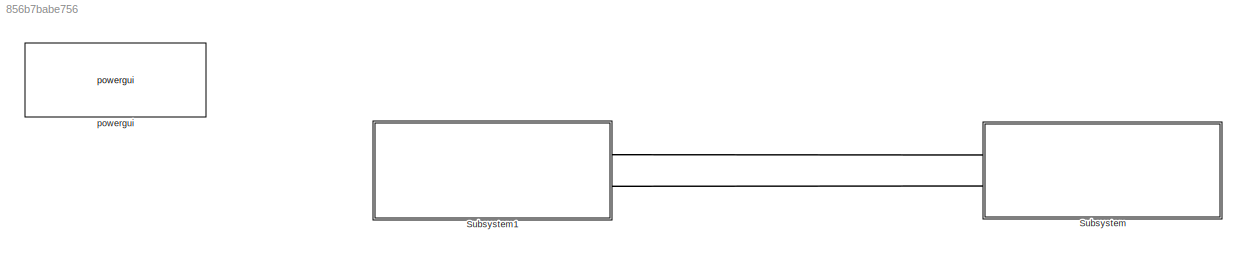
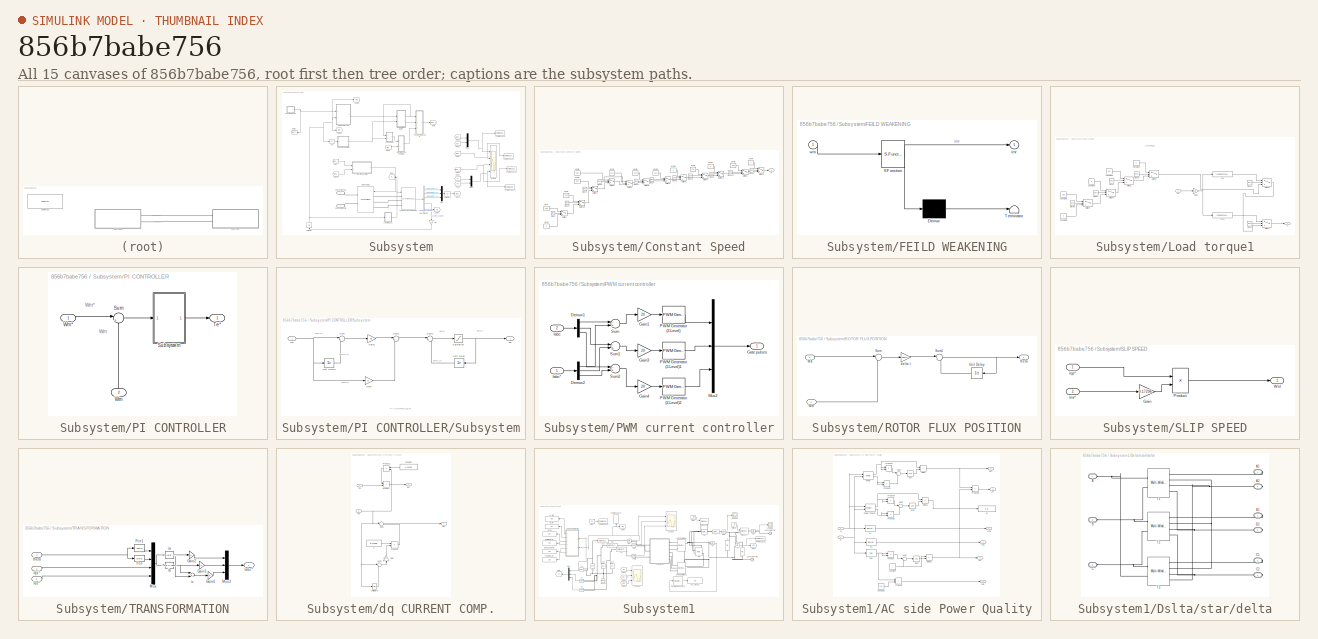
[diagram: thumbnail index - all 15 canvases of the model, root first then tree order]
MODEL slx_856b7babe756
KIND model
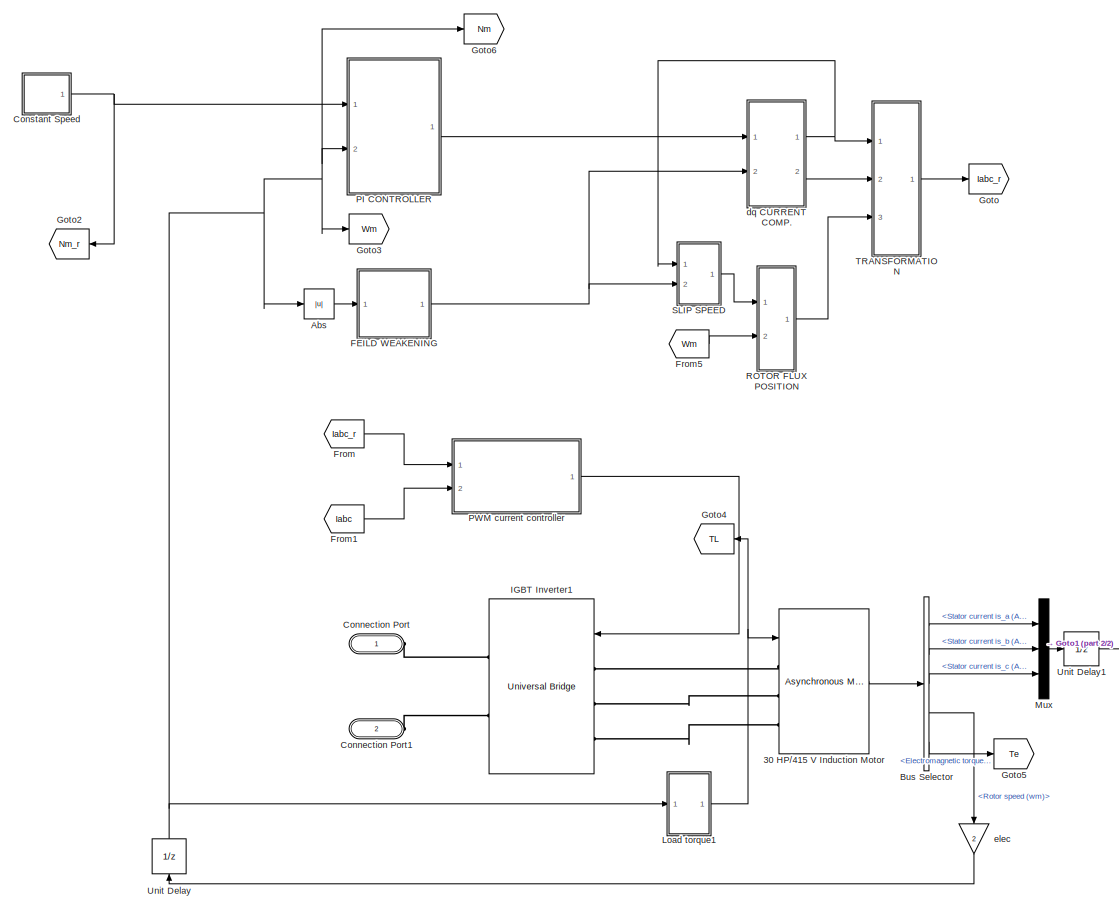
[diagram: Subsystem - part 1/2, center side, full height]
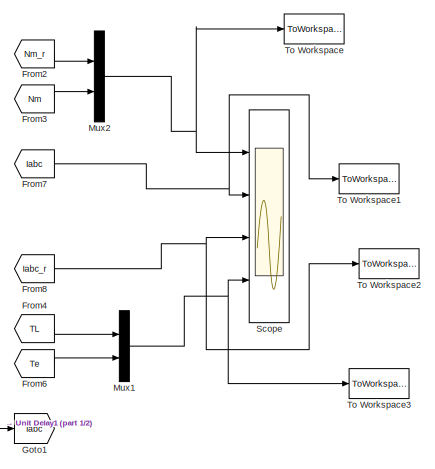
[diagram: Subsystem - part 2/2, middle right region]
BLOCK [SubSystem] Subsystem
  FunctionWithSeparateData = off
  MaskHideContents = off
  MinAlgLoopOccurrences = off
  Opaque = off
  Ports = [0, 0, 0, 0, 0, 2]
  PropExecContextOutsideSubsystem = off
  RTWSystemCode = Auto
  RequestExecContextInheritance = off
BLOCK [Reference] Subsystem/30 HP//415 V Induction Motor  REF=powerlib/Machines/Asynchronous Machine
SI Units
  AttributesFormatString = \n
  Cage1 = [ 0.022 0.226/377]
  Cage2 = [ 0.022 0.226/377]
  InitialConditions = [1 0 0 0 0 0 0 0]
  IterativeModel = Trapezoidal non iterative
  Lm = 0.0416
  LoadFlowParameters = 1492000
  Mechanical = [0.305 0 2 ]
  MechanicalLoad = Torque Tm
  NominalParameters = [30*746 415 50]
  Pmec = 0
  PolePairs = 2
  Ports = [1, 1, 0, 0, 0, 3]
  PresetModel = No
  ReferenceFrame = Rotor
  Rotor = [0.249 0.001397]
  RotorType = Squirrel-cage
  Saturation = [14.03593122, 27.81365428, 53.79336849, 72.68890987, 97.98006896, 148.6815601, 215.7428561, 302.9841135, 420.4778367 ; 230, 322, 414, 460, 506, 552, 598, 644, 690]
  ShowDetailedParameters = on
  SimulateSaturation = off
  SourceBlock = powerlib/Machines/Asynchronous Machine\nSI Units
  SourceType = Asynchronous Machine
  Stator = [0.251 0.001397]
  TsBlock = -1
  TsPowergui = 0
  Units = SI
BLOCK [Abs] Subsystem/Abs
BLOCK [BusSelector] Subsystem/Bus Selector
  OutputSignals = Stator measurements.Stator current is_a (A),Stator measurements.Stator current is_b (A),Stator measurements.Stator current is_c (A),Mechanical.Rotor speed (wm),Mechanical.Electromagnetic torque Te (N*m)
  Ports = [1, 5]
BLOCK [PMIOPort] Subsystem/Connection Port
  Port = 1
  Side = Left
BLOCK [PMIOPort] Subsystem/Connection Port1
  Port = 2
  Side = Left
BLOCK [SubSystem] Subsystem/Constant Speed
  FunctionWithSeparateData = off
  MaskHideContents = off
  MinAlgLoopOccurrences = off
  Opaque = off
  Ports = [0, 1]
  PropExecContextOutsideSubsystem = off
  RTWSystemCode = Auto
  RequestExecContextInheritance = off
BLOCK [Clock] Subsystem/Constant Speed/Clock
  Decimation = 2
BLOCK [Clock] Subsystem/Constant Speed/Clock1
  Decimation = 2
BLOCK [Clock] Subsystem/Constant Speed/Clock10
  Decimation = 2
BLOCK [Clock] Subsystem/Constant Speed/Clock2
  Decimation = 2
BLOCK [Clock] Subsystem/Constant Speed/Clock3
  Decimation = 2
BLOCK [Clock] Subsystem/Constant Speed/Clock4
  Decimation = 2
BLOCK [Clock] Subsystem/Constant Speed/Clock5
  Decimation = 2
BLOCK [Clock] Subsystem/Constant Speed/Clock6
  Decimation = 2
BLOCK [Clock] Subsystem/Constant Speed/Clock7
  Decimation = 2
BLOCK [Clock] Subsystem/Constant Speed/Clock8
  Decimation = 2
BLOCK [Clock] Subsystem/Constant Speed/Clock9
  Decimation = 2
BLOCK [Switch] Subsystem/Constant Speed/Switch
BLOCK [Switch] Subsystem/Constant Speed/Switch1
  Threshold = 7.5
BLOCK [Switch] Subsystem/Constant Speed/Switch10
  Threshold = 0.6
BLOCK [Switch] Subsystem/Constant Speed/Switch11
  Threshold = 6.8
BLOCK [Switch] Subsystem/Constant Speed/Switch2
  Threshold = 4.5
BLOCK [Switch] Subsystem/Constant Speed/Switch3
  Threshold = 8.3
BLOCK [Switch] Subsystem/Constant Speed/Switch4
  Threshold = 1.1
BLOCK [Switch] Subsystem/Constant Speed/Switch5
  Threshold = 1.8
BLOCK [Switch] Subsystem/Constant Speed/Switch6
  Threshold = 2.4
BLOCK [Switch] Subsystem/Constant Speed/Switch7
  Threshold = 6
BLOCK [Switch] Subsystem/Constant Speed/Switch8
  Threshold = 4
BLOCK [Switch] Subsystem/Constant Speed/Switch9
  Threshold = 5.3
BLOCK [Outport] Subsystem/Constant Speed/w*
  IconDisplay = Port number
BLOCK [Constant] Subsystem/Constant Speed/wref 
  Value = 250
BLOCK [Constant] Subsystem/Constant Speed/wref 1
  Value = 0
BLOCK [Constant] Subsystem/Constant Speed/wref 10
  Value = 250
BLOCK [Constant] Subsystem/Constant Speed/wref 11
  Value = 0
BLOCK [Constant] Subsystem/Constant Speed/wref 12
  Value = 0
BLOCK [Constant] Subsystem/Constant Speed/wref 2
  Value = 250
BLOCK [Constant] Subsystem/Constant Speed/wref 3
  Value = 250
BLOCK [Constant] Subsystem/Constant Speed/wref 4
  Value = 250
BLOCK [Constant] Subsystem/Constant Speed/wref 5
  Value = 250
BLOCK [Constant] Subsystem/Constant Speed/wref 6
  Value = 250
BLOCK [Constant] Subsystem/Constant Speed/wref 7
  Value = 0
BLOCK [Constant] Subsystem/Constant Speed/wref 8
  Value = 250
BLOCK [Constant] Subsystem/Constant Speed/wref 9
  Value = 250
BLOCK [SubSystem] Subsystem/FEILD WEAKENING
  ErrorFcn = Stateflow.Translate.translate
  FunctionWithSeparateData = off
  MaskHideContents = off
  MinAlgLoopOccurrences = off
  Opaque = off
  PermitHierarchicalResolution = ExplicitOnly
  Ports = [1, 1]
  PropExecContextOutsideSubsystem = off
  RTWSystemCode = Auto
  RequestExecContextInheritance = off
  SFBlockType = MATLAB Function
  TreatAsAtomicUnit = on
BLOCK [Demux] Subsystem/FEILD WEAKENING/ Demux 
  Outputs = 1
  Ports = [1, 1]
BLOCK [S-Function] Subsystem/FEILD WEAKENING/ SFunction 
  EnableBusSupport = on
  FunctionName = sf_sfun
  PortCounts = [1 2]
  Ports = [1, 2]
  Tag = Stateflow S-Function A 1
BLOCK [Terminator] Subsystem/FEILD WEAKENING/ Terminator 
BLOCK [Outport] Subsystem/FEILD WEAKENING/imr
  IconDisplay = Port number
BLOCK [Inport] Subsystem/FEILD WEAKENING/wm
  IconDisplay = Port number
BLOCK [From] Subsystem/From
  GotoTag = Iabc_r
BLOCK [From] Subsystem/From1
  GotoTag = Iabc
BLOCK [From] Subsystem/From2
  GotoTag = Nm_r
BLOCK [From] Subsystem/From3
  GotoTag = Nm
BLOCK [From] Subsystem/From4
  GotoTag = TL
BLOCK [From] Subsystem/From5
  GotoTag = Wm
BLOCK [From] Subsystem/From6
  GotoTag = Te
BLOCK [From] Subsystem/From7
  GotoTag = Iabc
BLOCK [From] Subsystem/From8
  GotoTag = Iabc_r
BLOCK [Goto] Subsystem/Goto
  GotoTag = Iabc_r
BLOCK [Goto] Subsystem/Goto1
  GotoTag = Iabc
BLOCK [Goto] Subsystem/Goto2
  GotoTag = Nm_r
BLOCK [Goto] Subsystem/Goto3
  GotoTag = Wm
BLOCK [Goto] Subsystem/Goto4
  GotoTag = TL
BLOCK [Goto] Subsystem/Goto5
  GotoTag = Te
BLOCK [Goto] Subsystem/Goto6
  GotoTag = Nm
BLOCK [Reference] Subsystem/IGBT Inverter1  REF=powerlib/Power
Electronics/Universal Bridge
  Arms = 3
  Device = MOSFET / Diodes
  ForwardVoltage = 0
  ForwardVoltages = [  0  0  ]
  GTOparameters = [ 10e-6 , 20e-6 ]
  IGBTparameters = [ 1e-6 , 2e-6 ]
  Lon = 0
  Measurements = None
  Measurements_2 = None
  Ports = [1, 0, 0, 0, 0, 3, 2]
  Ron = 1e-3
  SnubberCapacitance = inf
  SnubberResistance = 1e5
  SourceBlock = powerlib/Power\nElectronics/Universal Bridge
  SourceType = Universal Bridge
  converterType = Rectifier
BLOCK [SubSystem] Subsystem/Load torque1
  FunctionWithSeparateData = off
  MaskHideContents = off
  MinAlgLoopOccurrences = off
  Opaque = off
  Ports = [1, 1]
  PropExecContextOutsideSubsystem = off
  RTWSystemCode = Auto
  RequestExecContextInheritance = off
BLOCK [Clock] Subsystem/Load torque1/Clock1
BLOCK [Clock] Subsystem/Load torque1/Clock2
BLOCK [Clock] Subsystem/Load torque1/Clock3
BLOCK [Clock] Subsystem/Load torque1/Clock4
BLOCK [Clock] Subsystem/Load torque1/Clock5
BLOCK [Clock] Subsystem/Load torque1/Clock6
BLOCK [Constant] Subsystem/Load torque1/Constant3
  Value = 150
BLOCK [Constant] Subsystem/Load torque1/Constant4
  Value = 0
BLOCK [Constant] Subsystem/Load torque1/Constant5
  Value = 0
BLOCK [Constant] Subsystem/Load torque1/Constant6
  Value = 150
BLOCK [Constant] Subsystem/Load torque1/Constant7
  Value = 0
BLOCK [Fcn] Subsystem/Load torque1/Fcn
  Expr = (150/157.0796)*u(1)
BLOCK [Fcn] Subsystem/Load torque1/Fcn1
  Expr = (150/2.4674e+04)*((u(1))^2)
BLOCK [Gain] Subsystem/Load torque1/Gain1
  Gain = 1/2
  OutDataTypeStr = Inherit: Inherit via internal rule
  ParamDataTypeStr = Inherit: Inherit via internal rule
  SaturateOnIntegerOverflow = off
BLOCK [Switch] Subsystem/Load torque1/Switch1
  InputSameDT = off
  SaturateOnIntegerOverflow = off
  Threshold = 7.5
BLOCK [Switch] Subsystem/Load torque1/Switch2
  InputSameDT = off
  SaturateOnIntegerOverflow = off
  Threshold = 5
BLOCK [Switch] Subsystem/Load torque1/Switch3
  InputSameDT = off
  SaturateOnIntegerOverflow = off
  Threshold = 5.3
BLOCK [Switch] Subsystem/Load torque1/Switch4
  InputSameDT = off
  SaturateOnIntegerOverflow = off
  Threshold = 0.45
BLOCK [Switch] Subsystem/Load torque1/Switch5
  InputSameDT = off
  SaturateOnIntegerOverflow = off
  Threshold = 0.75
BLOCK [Switch] Subsystem/Load torque1/Switch6
  InputSameDT = off
  SaturateOnIntegerOverflow = off
  Threshold = 6
BLOCK [Outport] Subsystem/Load torque1/TL
  IconDisplay = Port number
BLOCK [Inport] Subsystem/Load torque1/Wr
  IconDisplay = Port number
BLOCK [Mux] Subsystem/Mux
  DisplayOption = bar
  Inputs = 3
  Ports = [3, 1]
BLOCK [Mux] Subsystem/Mux1
  DisplayOption = bar
  Inputs = 2
  Ports = [2, 1]
BLOCK [Mux] Subsystem/Mux2
  DisplayOption = bar
  Inputs = 2
  Ports = [2, 1]
BLOCK [SubSystem] Subsystem/PI CONTROLLER
  FunctionWithSeparateData = off
  MaskHideContents = off
  MinAlgLoopOccurrences = off
  Opaque = off
  Ports = [2, 1]
  PropExecContextOutsideSubsystem = off
  RTWSystemCode = Auto
  RequestExecContextInheritance = off
BLOCK [SubSystem] Subsystem/PI CONTROLLER/Subsystem
  FunctionWithSeparateData = off
  MaskHideContents = off
  MinAlgLoopOccurrences = off
  Opaque = off
  Ports = [1, 1]
  PropExecContextOutsideSubsystem = off
  RTWSystemCode = Auto
  RequestExecContextInheritance = off
BLOCK [Gain] Subsystem/PI CONTROLLER/Subsystem/Gain
  Gain = Ki
  OutDataTypeStr = Inherit: Inherit via internal rule
  ParamDataTypeStr = Inherit: Inherit via internal rule
  SaturateOnIntegerOverflow = off
BLOCK [Gain] Subsystem/PI CONTROLLER/Subsystem/Gain1
  Gain = Kp
  OutDataTypeStr = Inherit: Inherit via internal rule
  ParamDataTypeStr = Inherit: Inherit via internal rule
  SaturateOnIntegerOverflow = off
BLOCK [Saturate] Subsystem/PI CONTROLLER/Subsystem/Saturation
  InputPortMap = u0
  LowerLimit = -Lim
  Ports = [1, 1]
  UpperLimit = Lim
BLOCK [Sum] Subsystem/PI CONTROLLER/Subsystem/Sum
  IconShape = round
  InputSameDT = off
  Inputs = |+-
  OutDataTypeStr = Inherit: Inherit via internal rule
  Ports = [2, 1]
  SaturateOnIntegerOverflow = off
BLOCK [Sum] Subsystem/PI CONTROLLER/Subsystem/Sum1
  IconShape = round
  InputSameDT = off
  Inputs = |++
  OutDataTypeStr = Inherit: Inherit via internal rule
  Ports = [2, 1]
  SaturateOnIntegerOverflow = off
BLOCK [Sum] Subsystem/PI CONTROLLER/Subsystem/Sum2
  IconShape = round
  InputSameDT = off
  Inputs = |++
  OutDataTypeStr = Inherit: Inherit via internal rule
  Ports = [2, 1]
  SaturateOnIntegerOverflow = off
BLOCK [Outport] Subsystem/PI CONTROLLER/Subsystem/Te*
  IconDisplay = Port number
BLOCK [UnitDelay] Subsystem/PI CONTROLLER/Subsystem/Unit Delay
  SampleTime = Ts
BLOCK [UnitDelay] Subsystem/PI CONTROLLER/Subsystem/Unit Delay1
  SampleTime = Ts
BLOCK [Inport] Subsystem/PI CONTROLLER/Subsystem/We
  IconDisplay = Port number
BLOCK [Sum] Subsystem/PI CONTROLLER/Sum
  IconShape = round
  InputSameDT = off
  Inputs = |+-
  OutDataTypeStr = Inherit: Inherit via internal rule
  Ports = [2, 1]
  SaturateOnIntegerOverflow = off
BLOCK [Outport] Subsystem/PI CONTROLLER/Te*
  IconDisplay = Port number
BLOCK [Inport] Subsystem/PI CONTROLLER/Wm
  IconDisplay = Port number
  Port = 2
BLOCK [Inport] Subsystem/PI CONTROLLER/Wm*
  IconDisplay = Port number
BLOCK [SubSystem] Subsystem/PWM current controller
  FunctionWithSeparateData = off
  MaskHideContents = off
  MinAlgLoopOccurrences = off
  Opaque = off
  Ports = [2, 1]
  PropExecContextOutsideSubsystem = off
  RTWSystemCode = Auto
  RequestExecContextInheritance = off
BLOCK [Demux] Subsystem/PWM current controller/Demux1
  Outputs = 3
  Ports = [1, 3]
BLOCK [Demux] Subsystem/PWM current controller/Demux2
  Outputs = 3
  Ports = [1, 3]
BLOCK [Gain] Subsystem/PWM current controller/Gain1
  Gain = 20
BLOCK [Gain] Subsystem/PWM current controller/Gain3
  Gain = 20
BLOCK [Gain] Subsystem/PWM current controller/Gain4
  Gain = 20
BLOCK [Outport] Subsystem/PWM current controller/Gate pulses
  IconDisplay = Port number
BLOCK [Inport] Subsystem/PWM current controller/Iabc
  IconDisplay = Port number
  Port = 2
BLOCK [Inport] Subsystem/PWM current controller/Iabc*
  IconDisplay = Port number
BLOCK [Mux] Subsystem/PWM current controller/Mux2
  DisplayOption = bar
  Inputs = 3
  Ports = [3, 1]
BLOCK [Reference] Subsystem/PWM current controller/PWM Generator (2-Level)  REF=powerlib_meascontrol/Pulse & Signal
Generators/PWM Generator
(2-Level)
  Fc = 10000
  Freq = 60
  ModulatingSignals = off
  ModulatorMode = Unsynchronized
  ModulatorType = Single-phase half-bridge (2 pulses)
  Phase = 0
  Ports = [1, 1]
  SourceBlock = powerlib_meascontrol/Pulse & Signal\nGenerators/PWM Generator\n(2-Level)
  SourceType = PWM Generator (2-Level)
  Ts = 10e-6
  m = 0.8
  nF = 27
BLOCK [Reference] Subsystem/PWM current controller/PWM Generator (2-Level)1  REF=powerlib_meascontrol/Pulse & Signal
Generators/PWM Generator
(2-Level)
  Fc = 10000
  Freq = 60
  ModulatingSignals = off
  ModulatorMode = Unsynchronized
  ModulatorType = Single-phase half-bridge (2 pulses)
  Phase = 0
  Ports = [1, 1]
  SourceBlock = powerlib_meascontrol/Pulse & Signal\nGenerators/PWM Generator\n(2-Level)
  SourceType = PWM Generator (2-Level)
  Ts = 5e-6
  m = 0.8
  nF = 27
BLOCK [Reference] Subsystem/PWM current controller/PWM Generator (2-Level)2  REF=powerlib_meascontrol/Pulse & Signal
Generators/PWM Generator
(2-Level)
  Fc = 10000
  Freq = 60
  ModulatingSignals = off
  ModulatorMode = Unsynchronized
  ModulatorType = Single-phase half-bridge (2 pulses)
  Phase = 0
  Ports = [1, 1]
  SourceBlock = powerlib_meascontrol/Pulse & Signal\nGenerators/PWM Generator\n(2-Level)
  SourceType = PWM Generator (2-Level)
  Ts = 5e-6
  m = 0.8
  nF = 27
BLOCK [Sum] Subsystem/PWM current controller/Sum
  Inputs = -+
  Ports = [2, 1]
BLOCK [Sum] Subsystem/PWM current controller/Sum1
  Inputs = -+
  Ports = [2, 1]
BLOCK [Sum] Subsystem/PWM current controller/Sum2
  Inputs = -+
  Ports = [2, 1]
BLOCK [SubSystem] Subsystem/ROTOR FLUX POSITION
  FunctionWithSeparateData = off
  MaskHideContents = off
  MinAlgLoopOccurrences = off
  Opaque = off
  Ports = [2, 1]
  PropExecContextOutsideSubsystem = off
  RTWSystemCode = Auto
  RequestExecContextInheritance = off
BLOCK [Sum] Subsystem/ROTOR FLUX POSITION/Sum
  IconShape = round
  InputSameDT = off
  Inputs = |++
  OutDataTypeStr = Inherit: Inherit via internal rule
  Ports = [2, 1]
  SaturateOnIntegerOverflow = off
BLOCK [Sum] Subsystem/ROTOR FLUX POSITION/Sum1
  IconShape = round
  InputSameDT = off
  Inputs = |++
  OutDataTypeStr = Inherit: Inherit via internal rule
  Ports = [2, 1]
  SaturateOnIntegerOverflow = off
BLOCK [UnitDelay] Subsystem/ROTOR FLUX POSITION/Unit Delay
  SampleTime = 100e-6
BLOCK [Inport] Subsystem/ROTOR FLUX POSITION/Wm
  IconDisplay = Port number
  Port = 2
BLOCK [Inport] Subsystem/ROTOR FLUX POSITION/Wsl	
  IconDisplay = Port number
BLOCK [Gain] Subsystem/ROTOR FLUX POSITION/delta t
  Gain = 100e-6
  OutDataTypeStr = Inherit: Inherit via internal rule
  ParamDataTypeStr = Inherit: Inherit via internal rule
  SaturateOnIntegerOverflow = off
BLOCK [Outport] Subsystem/ROTOR FLUX POSITION/theta
  IconDisplay = Port number
BLOCK [SubSystem] Subsystem/SLIP SPEED
  FunctionWithSeparateData = off
  MaskHideContents = off
  MinAlgLoopOccurrences = off
  Opaque = off
  Ports = [2, 1]
  PropExecContextOutsideSubsystem = off
  RTWSystemCode = Auto
  RequestExecContextInheritance = off
BLOCK [Gain] Subsystem/SLIP SPEED/Gain
  Gain = 0.17296
  OutDataTypeStr = Inherit: Inherit via internal rule
  ParamDataTypeStr = Inherit: Inherit via internal rule
  SaturateOnIntegerOverflow = off
BLOCK [Inport] Subsystem/SLIP SPEED/Imr*
  IconDisplay = Port number
  Port = 2
BLOCK [Inport] Subsystem/SLIP SPEED/Iqs*
  IconDisplay = Port number
BLOCK [Product] Subsystem/SLIP SPEED/Product
  InputSameDT = off
  Inputs = */
  OutDataTypeStr = Inherit: Inherit via internal rule
  Ports = [2, 1]
  RndMeth = Floor
  SaturateOnIntegerOverflow = off
BLOCK [Outport] Subsystem/SLIP SPEED/Wsl
  IconDisplay = Port number
BLOCK [Scope] Subsystem/Scope
  DataFormat = StructureWithTime
  Decimation = 10
  Floating = off
  LimitDataPoints = off
  MaxDataPoints = 1000
  NumInputPorts = 4
  Ports = [4]
  SampleTime = 0
  SaveName = ScopeData1
  SaveToWorkspace = on
  ShowLegends = off
  TickLabels = on
  TimeRange = 4.5
  YMax = 250.008~25~22.5~7
  YMin = 249.989~-25~-22.5~-11
  ZoomMode = xonly
BLOCK [SubSystem] Subsystem/TRANSFORMATION
  FunctionWithSeparateData = off
  MaskHideContents = off
  MinAlgLoopOccurrences = off
  Opaque = off
  Ports = [3, 1]
  PropExecContextOutsideSubsystem = off
  RTWSystemCode = Auto
  RequestExecContextInheritance = off
BLOCK [Fcn] Subsystem/TRANSFORMATION/Fcn
  Expr = sin(u)
BLOCK [Fcn] Subsystem/TRANSFORMATION/Fcn1
  Expr = cos(u)
BLOCK [Gain] Subsystem/TRANSFORMATION/Gain2
BLOCK [Gain] Subsystem/TRANSFORMATION/Gain3
BLOCK [Gain] Subsystem/TRANSFORMATION/Gain4
BLOCK [Outport] Subsystem/TRANSFORMATION/Iabc*
  IconDisplay = Port number
BLOCK [Inport] Subsystem/TRANSFORMATION/Ids*
  IconDisplay = Port number
  Port = 2
BLOCK [Inport] Subsystem/TRANSFORMATION/Iqs*
  IconDisplay = Port number
BLOCK [Mux] Subsystem/TRANSFORMATION/Mux
  Ports = [4, 1]
BLOCK [Mux] Subsystem/TRANSFORMATION/Mux2
  Inputs = 3
  Ports = [3, 1]
BLOCK [Fcn] Subsystem/TRANSFORMATION/ia
  Expr = -u[3]*u[2] + u[4]*u[1]
BLOCK [Fcn] Subsystem/TRANSFORMATION/ib
  Expr = (-u[1]+1.7320508*u[2])*u[4]*0.5+(u[2]+1.7320508*u[1])*u[3]*0.5
BLOCK [Sum] Subsystem/TRANSFORMATION/ic
  Inputs = --
  Ports = [2, 1]
BLOCK [Inport] Subsystem/TRANSFORMATION/theta
  IconDisplay = Port number
  Port = 3
BLOCK [ToWorkspace] Subsystem/To Workspace
  MaxDataPoints = inf
  Ports = [1]
  SampleTime = 100e-6
  SaveFormat = Structure With Time
  VariableName = speed_vc1
BLOCK [ToWorkspace] Subsystem/To Workspace1
  MaxDataPoints = inf
  Ports = [1]
  SampleTime = 100e-6
  SaveFormat = Structure With Time
  VariableName = current_vc1
BLOCK [ToWorkspace] Subsystem/To Workspace2
  MaxDataPoints = inf
  Ports = [1]
  SampleTime = 100e-6
  SaveFormat = Structure With Time
  VariableName = current_ref_vc1
BLOCK [ToWorkspace] Subsystem/To Workspace3
  MaxDataPoints = inf
  Ports = [1]
  SampleTime = 100e-6
  SaveFormat = Structure With Time
  VariableName = torque_vc1
BLOCK [UnitDelay] Subsystem/Unit Delay
  SampleTime = 100e-6
BLOCK [UnitDelay] Subsystem/Unit Delay1
  SampleTime = 10e-6
BLOCK [SubSystem] Subsystem/dq CURRENT COMP.
  FunctionWithSeparateData = off
  MaskHideContents = off
  MinAlgLoopOccurrences = off
  Opaque = off
  Ports = [2, 2]
  PropExecContextOutsideSubsystem = off
  RTWSystemCode = Auto
  RequestExecContextInheritance = off
BLOCK [Constant] Subsystem/dq CURRENT COMP./Constant
  Value = 0.12115
BLOCK [Gain] Subsystem/dq CURRENT COMP./Gain
  Gain = 1/(10e-6)
  OutDataTypeStr = Inherit: Inherit via internal rule
  ParamDataTypeStr = Inherit: Inherit via internal rule
  SaturateOnIntegerOverflow = off
BLOCK [Outport] Subsystem/dq CURRENT COMP./Ids*
  IconDisplay = Port number
  Port = 2
BLOCK [Inport] Subsystem/dq CURRENT COMP./Imr
  IconDisplay = Port number
  Port = 2
BLOCK [Outport] Subsystem/dq CURRENT COMP./Iqs*
  IconDisplay = Port number
BLOCK [Product] Subsystem/dq CURRENT COMP./Product
  InputSameDT = off
  Inputs = /*
  OutDataTypeStr = Inherit: Inherit via internal rule
  Ports = [2, 1]
  RndMeth = Floor
  SaturateOnIntegerOverflow = off
BLOCK [Product] Subsystem/dq CURRENT COMP./Product1
  InputSameDT = off
  OutDataTypeStr = Inherit: Inherit via internal rule
  Ports = [2, 1]
  RndMeth = Floor
  SaturateOnIntegerOverflow = off
BLOCK [Product] Subsystem/dq CURRENT COMP./Product2
  Ports = [2, 1]
  RndMeth = Floor
BLOCK [Sum] Subsystem/dq CURRENT COMP./Sum1
  IconShape = round
  InputSameDT = off
  Inputs = |++
  OutDataTypeStr = Inherit: Inherit via internal rule
  Ports = [2, 1]
  SaturateOnIntegerOverflow = off
BLOCK [Sum] Subsystem/dq CURRENT COMP./Sum2
  IconShape = round
  InputSameDT = off
  Inputs = |+-
  OutDataTypeStr = Inherit: Inherit via internal rule
  Ports = [2, 1]
  SaturateOnIntegerOverflow = off
BLOCK [Inport] Subsystem/dq CURRENT COMP./Te*
  IconDisplay = Port number
BLOCK [UnitDelay] Subsystem/dq CURRENT COMP./Unit Delay3
  SampleTime = 10e-6
BLOCK [Constant] Subsystem/dq CURRENT COMP./tr
  Value = 0.17296
BLOCK [Gain] Subsystem/elec
  Gain = 2
  OutDataTypeStr = Inherit: Inherit via internal rule
  ParamDataTypeStr = Inherit: Inherit via internal rule
  SaturateOnIntegerOverflow = off
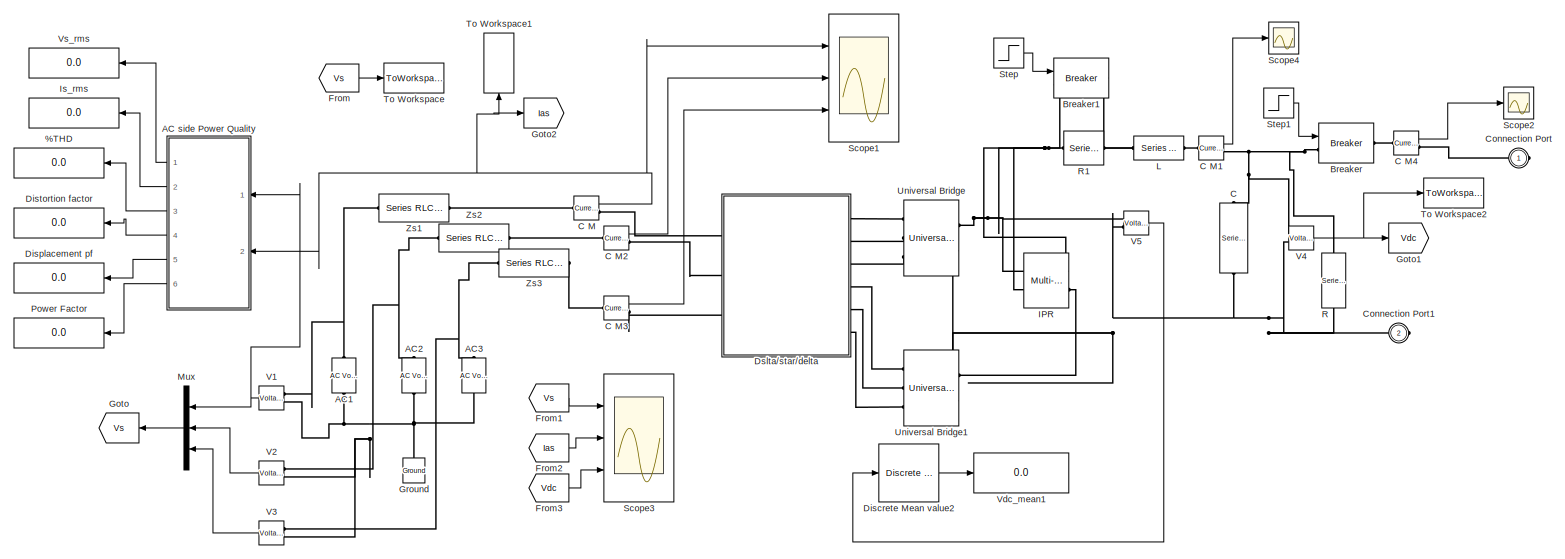
[diagram: Subsystem1 - part 1/1, most of the canvas]
BLOCK [SubSystem] Subsystem1
  FunctionWithSeparateData = off
  MaskHideContents = off
  MinAlgLoopOccurrences = off
  Opaque = off
  Ports = [0, 0, 0, 0, 0, 0, 2]
  PropExecContextOutsideSubsystem = off
  RTWSystemCode = Auto
  RequestExecContextInheritance = off
BLOCK [Display] Subsystem1/%THD
  Decimation = 1
  Ports = [1]
BLOCK [SubSystem] Subsystem1/AC side Power Quality
  FunctionWithSeparateData = off
  MaskHideContents = off
  MinAlgLoopOccurrences = off
  Opaque = off
  Ports = [2, 6]
  PropExecContextOutsideSubsystem = off
  RTWSystemCode = Auto
  RequestExecContextInheritance = off
BLOCK [Constant] Subsystem1/AC side Power Quality/Constant
BLOCK [Constant] Subsystem1/AC side Power Quality/Constant1
  Value = 100
BLOCK [Outport] Subsystem1/AC side Power Quality/DF
  IconDisplay = Port number
  Port = 4
BLOCK [Outport] Subsystem1/AC side Power Quality/DPF
  IconDisplay = Port number
  Port = 5
BLOCK [Product] Subsystem1/AC side Power Quality/Divide
  InputSameDT = off
  Inputs = */
  OutDataTypeStr = Inherit: Inherit via internal rule
  Ports = [2, 1]
  RndMeth = Floor
  SaturateOnIntegerOverflow = off
BLOCK [Product] Subsystem1/AC side Power Quality/Divide1
  InputSameDT = off
  Inputs = */
  OutDataTypeStr = Inherit: Inherit via internal rule
  Ports = [2, 1]
  RndMeth = Floor
  SaturateOnIntegerOverflow = off
BLOCK [Product] Subsystem1/AC side Power Quality/Divide2
  InputSameDT = off
  Inputs = */
  OutDataTypeStr = Inherit: Inherit via internal rule
  Ports = [2, 1]
  RndMeth = Floor
  SaturateOnIntegerOverflow = off
BLOCK [Outport] Subsystem1/AC side Power Quality/Irms
  IconDisplay = Port number
  Port = 2
BLOCK [Inport] Subsystem1/AC side Power Quality/Is
  IconDisplay = Port number
  Port = 2
BLOCK [Reference] Subsystem1/AC side Power Quality/Is1  REF=powerlib_extras/Discrete
Measurements/Discrete 
RMS value
  Freq = 50
  Mag_Init = 0
  Ports = [1, 1]
  SourceBlock = powerlib_extras/Discrete\nMeasurements/Discrete \nRMS value
  SourceType = Discrete RMS value
  Ts = 5e-006
BLOCK [Reference] Subsystem1/AC side Power Quality/Is3  REF=powerlib_extras/Discrete
Measurements/Discrete 
RMS value
  Freq = 50
  Mag_Init = 0
  Ports = [1, 1]
  SourceBlock = powerlib_extras/Discrete\nMeasurements/Discrete \nRMS value
  SourceType = Discrete RMS value
  Ts = 5e-006
BLOCK [Outport] Subsystem1/AC side Power Quality/PF
  IconDisplay = Port number
  Port = 6
BLOCK [Reference] Subsystem1/AC side Power Quality/Power  REF=powerlib_meascontrol/Measurements/Power
  Freq = 60
  Iinit = [1, 0]
  Ports = [2, 2]
  SourceBlock = powerlib_meascontrol/Measurements/Power
  SourceType = Power
  Ts = 0
  Vinit = [1, 0]
BLOCK [Reference] Subsystem1/AC side Power Quality/Power (Phasor)  REF=powerlib_meascontrol/Measurements/Power
(Phasor)
  Ports = [2, 2]
  SourceBlock = powerlib_meascontrol/Measurements/Power\n(Phasor)
  SourceType = Power (Phasor)
BLOCK [Product] Subsystem1/AC side Power Quality/Product
  InputSameDT = off
  OutDataTypeStr = Inherit: Inherit via internal rule
  Ports = [2, 1]
  RndMeth = Floor
  SaturateOnIntegerOverflow = off
BLOCK [Product] Subsystem1/AC side Power Quality/Product1
  InputSameDT = off
  OutDataTypeStr = Inherit: Inherit via internal rule
  Ports = [2, 1]
  RndMeth = Floor
  SaturateOnIntegerOverflow = off
BLOCK [Product] Subsystem1/AC side Power Quality/Product2
  InputSameDT = off
  OutDataTypeStr = Inherit: Inherit via internal rule
  Ports = [2, 1]
  RndMeth = Floor
  SaturateOnIntegerOverflow = off
BLOCK [Product] Subsystem1/AC side Power Quality/Product3
  InputSameDT = off
  OutDataTypeStr = Inherit: Inherit via internal rule
  Ports = [2, 1]
  RndMeth = Floor
  SaturateOnIntegerOverflow = off
BLOCK [Product] Subsystem1/AC side Power Quality/Product4
  InputSameDT = off
  OutDataTypeStr = Inherit: Inherit via internal rule
  Ports = [2, 1]
  RndMeth = Floor
  SaturateOnIntegerOverflow = off
BLOCK [Product] Subsystem1/AC side Power Quality/Product5
  InputSameDT = off
  OutDataTypeStr = Inherit: Inherit via internal rule
  Ports = [2, 1]
  RndMeth = Floor
  SaturateOnIntegerOverflow = off
BLOCK [Product] Subsystem1/AC side Power Quality/Product6
  InputSameDT = off
  OutDataTypeStr = Inherit: Inherit via internal rule
  Ports = [2, 1]
  RndMeth = Floor
  SaturateOnIntegerOverflow = off
BLOCK [Sqrt] Subsystem1/AC side Power Quality/Sqrt
BLOCK [Sqrt] Subsystem1/AC side Power Quality/Sqrt1
BLOCK [Sqrt] Subsystem1/AC side Power Quality/Sqrt2
BLOCK [Sum] Subsystem1/AC side Power Quality/Sum1
  IconShape = round
  InputSameDT = off
  Inputs = |++
  OutDataTypeStr = Inherit: Inherit via internal rule
  Ports = [2, 1]
  SaturateOnIntegerOverflow = off
BLOCK [Sum] Subsystem1/AC side Power Quality/Sum2
  IconShape = round
  InputSameDT = off
  Inputs = |++
  OutDataTypeStr = Inherit: Inherit via internal rule
  Ports = [2, 1]
  SaturateOnIntegerOverflow = off
BLOCK [Sum] Subsystem1/AC side Power Quality/Sum3
  IconShape = round
  InputSameDT = off
  Inputs = |++
  OutDataTypeStr = Inherit: Inherit via internal rule
  Ports = [2, 1]
  SaturateOnIntegerOverflow = off
BLOCK [Reference] Subsystem1/AC side Power Quality/THD  REF=powerlib_meascontrol/Measurements/THD
  Freq = 50
  Ports = [1, 1]
  SourceBlock = powerlib_meascontrol/Measurements/THD
  SourceType = THD
  Ts = 5e-006
BLOCK [Outport] Subsystem1/AC side Power Quality/THD 
  IconDisplay = Port number
  Port = 3
BLOCK [Outport] Subsystem1/AC side Power Quality/Vrms 
  IconDisplay = Port number
BLOCK [Inport] Subsystem1/AC side Power Quality/Vs
  IconDisplay = Port number
BLOCK [Display] Subsystem1/AC side Power Quality/pf
  Decimation = 1
  Format = long
  Ports = [1]
BLOCK [Reference] Subsystem1/AC1  REF=powerlib/Electrical
Sources/AC Voltage Source
  Amplitude = 338.41
  Frequency = 50
  Measurements = None
  Phase = 0
  Ports = [0, 0, 0, 0, 0, 1, 1]
  SampleTime = 0
  SourceBlock = powerlib/Electrical\nSources/AC Voltage Source
  SourceType = AC Voltage Source
BLOCK [Reference] Subsystem1/AC2  REF=powerlib/Electrical
Sources/AC Voltage Source
  Amplitude = 338.41
  Frequency = 50
  Measurements = None
  Phase = -120
  Ports = [0, 0, 0, 0, 0, 1, 1]
  SampleTime = 0
  SourceBlock = powerlib/Electrical\nSources/AC Voltage Source
  SourceType = AC Voltage Source
BLOCK [Reference] Subsystem1/AC3  REF=powerlib/Electrical
Sources/AC Voltage Source
  Amplitude = 338.41
  Frequency = 50
  Measurements = None
  Phase = -240
  Ports = [0, 0, 0, 0, 0, 1, 1]
  SampleTime = 0
  SourceBlock = powerlib/Electrical\nSources/AC Voltage Source
  SourceType = AC Voltage Source
BLOCK [Reference] Subsystem1/Breaker  REF=powerlib/Elements/Breaker
  BreakerResistance = 0.01
  External = on
  InitialState = 0
  Measurements = None
  MoreParameters = off
  NoBreakLoop = off
  Ports = [1, 0, 0, 0, 0, 1, 1]
  SnubberCapacitance = inf
  SnubberResistance = 1e6
  SourceBlock = powerlib/Elements/Breaker
  SourceType = Breaker
  SwitchingTimes = [ 1/60  5/60 ]
BLOCK [Reference] Subsystem1/Breaker1  REF=powerlib/Elements/Breaker
  BreakerResistance = 0.01
  External = on
  InitialState = 0
  Measurements = None
  MoreParameters = off
  NoBreakLoop = off
  Ports = [1, 0, 0, 0, 0, 1, 1]
  SnubberCapacitance = inf
  SnubberResistance = 1e6
  SourceBlock = powerlib/Elements/Breaker
  SourceType = Breaker
  SwitchingTimes = [ 1/60  5/60 ]
BLOCK [Reference] Subsystem1/C   REF=powerlib/Elements/Series RLC Branch
  BranchType = C
  Capacitance = 1500e-6
  Inductance = 1e-3
  InitialCurrent = 0
  InitialVoltage = 0
  LConnTagsString = __new0
  Measurements = Branch voltage
  Ports = [0, 0, 0, 0, 0, 1, 1]
  RConnTagsString = __new0
  Resistance = 1
  SetiL0 = off
  Setx0 = off
  SourceBlock = powerlib/Elements/Series RLC Branch
  SourceType = Series RLC Branch
BLOCK [Reference] Subsystem1/C M  REF=powerlib/Measurements/Current Measurement
  OutputType = Complex
  PSBequivalent = 0
  PhasorSimulation = off
  Ports = [0, 1, 0, 0, 0, 1, 1]
  SourceBlock = powerlib/Measurements/Current Measurement
  SourceType = Current Measurement
  UserDataPersistent = on
BLOCK [Reference] Subsystem1/C M1  REF=powerlib/Measurements/Current Measurement
  OutputType = Complex
  PSBequivalent = 0
  PhasorSimulation = off
  Ports = [0, 1, 0, 0, 0, 1, 1]
  SourceBlock = powerlib/Measurements/Current Measurement
  SourceType = Current Measurement
  UserDataPersistent = on
BLOCK [Reference] Subsystem1/C M2  REF=powerlib/Measurements/Current Measurement
  OutputType = Complex
  PSBequivalent = 0
  PhasorSimulation = off
  Ports = [0, 1, 0, 0, 0, 1, 1]
  SourceBlock = powerlib/Measurements/Current Measurement
  SourceType = Current Measurement
  UserDataPersistent = on
BLOCK [Reference] Subsystem1/C M3  REF=powerlib/Measurements/Current Measurement
  OutputType = Complex
  PSBequivalent = 0
  PhasorSimulation = off
  Ports = [0, 1, 0, 0, 0, 1, 1]
  SourceBlock = powerlib/Measurements/Current Measurement
  SourceType = Current Measurement
  UserDataPersistent = on
BLOCK [Reference] Subsystem1/C M4  REF=powerlib/Measurements/Current Measurement
  OutputType = Complex
  PSBequivalent = 0
  PhasorSimulation = off
  Ports = [0, 1, 0, 0, 0, 1, 1]
  SourceBlock = powerlib/Measurements/Current Measurement
  SourceType = Current Measurement
  UserDataPersistent = on
BLOCK [PMIOPort] Subsystem1/Connection Port
  Port = 1
  Side = Right
BLOCK [PMIOPort] Subsystem1/Connection Port1
  Port = 2
  Side = Right
BLOCK [Reference] Subsystem1/Discrete Mean value2  REF=powerlib_extras/Discrete
Measurements/Discrete 
Mean value
  Freq = 50
  Ports = [1, 1]
  SourceBlock = powerlib_extras/Discrete\nMeasurements/Discrete \nMean value
  SourceType = Discrete Mean value
  Ts = 5e-006
  Vinit = 0
BLOCK [Display] Subsystem1/Displacement pf
  Decimation = 1
  Ports = [1]
BLOCK [Display] Subsystem1/Distortion factor
  Decimation = 1
  Ports = [1]
BLOCK [SubSystem] Subsystem1/Dslta//star//delta
  FunctionWithSeparateData = off
  MaskHideContents = off
  MinAlgLoopOccurrences = off
  Opaque = off
  Ports = [0, 0, 0, 0, 0, 3, 6]
  PropExecContextOutsideSubsystem = off
  RTWSystemCode = Auto
  RequestExecContextInheritance = off
BLOCK [PMIOPort] Subsystem1/Dslta//star//delta/A
  Port = 7
  Side = Left
  Tag = PMCPort
BLOCK [PMIOPort] Subsystem1/Dslta//star//delta/A1
  Port = 1
  Side = Right
  Tag = PMCPort
BLOCK [PMIOPort] Subsystem1/Dslta//star//delta/A2
  Port = 4
  Side = Right
  Tag = PMCPort
BLOCK [PMIOPort] Subsystem1/Dslta//star//delta/B
  Port = 8
  Side = Left
  Tag = PMCPort
BLOCK [PMIOPort] Subsystem1/Dslta//star//delta/B1
  Port = 2
  Side = Right
  Tag = PMCPort
BLOCK [PMIOPort] Subsystem1/Dslta//star//delta/B2
  Port = 5
  Side = Right
  Tag = PMCPort
BLOCK [PMIOPort] Subsystem1/Dslta//star//delta/C
  Port = 9
  Side = Left
  Tag = PMCPort
BLOCK [PMIOPort] Subsystem1/Dslta//star//delta/C1
  Port = 3
  Side = Right
  Tag = PMCPort
BLOCK [PMIOPort] Subsystem1/Dslta//star//delta/C2
  Port = 6
  Side = Right
  Tag = PMCPort
BLOCK [Reference] Subsystem1/Dslta//star//delta/T1  REF=powerlib/Elements/Multi-Winding
Transformer
  BreakLoop = off
  DataFile = 'hysteresis.mat'
  DataType = off
  Hysteresis = off
  InitialFlux = 0
  LeftWindings = 1
  Lm = 50
  Measurements = None
  MoreParameters = off
  NominalPower = [8.53e3 50]
  NominalVoltages = [ 440  254.034 440 ]
  NumberOfTaps = 2
  Ports = [0, 0, 0, 0, 0, 2, 4]
  RightWindings = 2
  Rm = 50
  Saturation = [ 0,0 ; 0.0024,1.2 ; 1.0,1.52 ]
  SetSaturation = off
  SourceBlock = powerlib/Elements/Multi-Winding\nTransformer
  SourceType = Multi-Winding Transformer
  TappedWindings = no taps
  TransfoNumber = 1
  UNITS = pu
  WindingInductances = [ 0.02  0.02  0.02 ]
  WindingResistances = [ 0.005  0.005  0.005 ]
BLOCK [Reference] Subsystem1/Dslta//star//delta/T2  REF=powerlib/Elements/Multi-Winding
Transformer
  BreakLoop = off
  DataFile = 'hysteresis.mat'
  DataType = off
  Hysteresis = off
  InitialFlux = 0
  LeftWindings = 1
  Lm = 50
  Measurements = None
  MoreParameters = off
  NominalPower = [8.53e3 50]
  NominalVoltages = [ 440  254.034 440 ]
  NumberOfTaps = 2
  Ports = [0, 0, 0, 0, 0, 2, 4]
  RightWindings = 2
  Rm = 50
  Saturation = [ 0,0 ; 0.0024,1.2 ; 1.0,1.52 ]
  SetSaturation = off
  SourceBlock = powerlib/Elements/Multi-Winding\nTransformer
  SourceType = Multi-Winding Transformer
  TappedWindings = no taps
  TransfoNumber = 1
  UNITS = pu
  WindingInductances = [ 0.02  0.02  0.02 ]
  WindingResistances = [ 0.005  0.005  0.005 ]
BLOCK [Reference] Subsystem1/Dslta//star//delta/T3  REF=powerlib/Elements/Multi-Winding
Transformer
  BreakLoop = off
  DataFile = 'hysteresis.mat'
  DataType = off
  Hysteresis = off
  InitialFlux = 0
  LeftWindings = 1
  Lm = 50
  Measurements = None
  MoreParameters = off
  NominalPower = [8.53e3 50]
  NominalVoltages = [ 440  254.034 440 ]
  NumberOfTaps = 2
  Ports = [0, 0, 0, 0, 0, 2, 4]
  RightWindings = 2
  Rm = 50
  Saturation = [ 0,0 ; 0.0024,1.2 ; 1.0,1.52 ]
  SetSaturation = off
  SourceBlock = powerlib/Elements/Multi-Winding\nTransformer
  SourceType = Multi-Winding Transformer
  TappedWindings = no taps
  TransfoNumber = 1
  UNITS = pu
  WindingInductances = [ 0.02  0.02  0.02 ]
  WindingResistances = [ 0.005  0.005  0.005 ]
BLOCK [From] Subsystem1/From
  GotoTag = Vs
BLOCK [From] Subsystem1/From1
  GotoTag = Vs
BLOCK [From] Subsystem1/From2
  GotoTag = Ias
BLOCK [From] Subsystem1/From3
  GotoTag = Vdc
BLOCK [Goto] Subsystem1/Goto
  GotoTag = Vs
BLOCK [Goto] Subsystem1/Goto1
  GotoTag = Vdc
BLOCK [Goto] Subsystem1/Goto2
  GotoTag = Ias
BLOCK [Reference] Subsystem1/Ground  REF=powerlib/Elements/Ground
  LConnTagsString = a
  Ports = [0, 0, 0, 0, 0, 1]
  SourceBlock = powerlib/Elements/Ground
  SourceType = Ground
BLOCK [Reference] Subsystem1/IPR  REF=powerlib/Elements/Multi-Winding
Transformer
  BreakLoop = off
  DataFile = 'hysteresis.mat'
  DataType = off
  Hysteresis = off
  InitialFlux = 0
  LeftWindings = 1
  Lm = 50
  Measurements = None
  MoreParameters = off
  NominalPower = [.85e3 50]
  NominalVoltages = [ 100  100 ]
  NumberOfTaps = 2
  Ports = [0, 0, 0, 0, 0, 2, 2]
  RightWindings = 1
  Rm = 50
  Saturation = [ 0,0 ; 0.0024,1.2 ; 1.0,1.52 ]
  SetSaturation = off
  SourceBlock = powerlib/Elements/Multi-Winding\nTransformer
  SourceType = Multi-Winding Transformer
  TappedWindings = no taps
  TransfoNumber = 1
  UNITS = pu
  WindingInductances = [ 0.02  0.02 ]
  WindingResistances = [ 0.005  0.005 ]
BLOCK [Display] Subsystem1/Is_rms
  Decimation = 1
  Ports = [1]
BLOCK [Reference] Subsystem1/L  REF=powerlib/Elements/Series RLC Branch
  BranchType = L
  Capacitance = 1e-6
  Inductance = 2e-3
  InitialCurrent = 0
  InitialVoltage = 0
  LConnTagsString = __new0
  Measurements = None
  Ports = [0, 0, 0, 0, 0, 1, 1]
  RConnTagsString = __new0
  Resistance = 1
  SetiL0 = off
  Setx0 = off
  SourceBlock = powerlib/Elements/Series RLC Branch
  SourceType = Series RLC Branch
BLOCK [Mux] Subsystem1/Mux
  DisplayOption = bar
  Inputs = 3
  Ports = [3, 1]
BLOCK [Display] Subsystem1/Power Factor
  Decimation = 1
  Format = long
  Ports = [1]
BLOCK [Reference] Subsystem1/R  REF=powerlib/Elements/Series RLC Branch
  BranchType = R
  Capacitance = 1e-6
  Inductance = 1e-3
  InitialCurrent = 0
  InitialVoltage = 0
  LConnTagsString = __new0
  Measurements = None
  Ports = [0, 0, 0, 0, 0, 1, 1]
  RConnTagsString = __new0
  Resistance = 15
  SetiL0 = off
  Setx0 = off
  SourceBlock = powerlib/Elements/Series RLC Branch
  SourceType = Series RLC Branch
BLOCK [Reference] Subsystem1/R1  REF=powerlib/Elements/Series RLC Branch
  BranchType = R
  Capacitance = 1e-6
  Inductance = 1e-3
  InitialCurrent = 0
  InitialVoltage = 0
  LConnTagsString = __new0
  Measurements = None
  Ports = [0, 0, 0, 0, 0, 1, 1]
  RConnTagsString = __new0
  Resistance = 5
  SetiL0 = off
  Setx0 = off
  SourceBlock = powerlib/Elements/Series RLC Branch
  SourceType = Series RLC Branch
BLOCK [Scope] Subsystem1/Scope1
  DataFormat = StructureWithTime
  Floating = off
  LimitDataPoints = off
  NumInputPorts = 3
  Ports = [3]
  SampleTime = 0
  SaveName = Source1
  SaveToWorkspace = on
  ShowLegends = off
  YMax = 5~5~5
  YMin = -5~-5~-5
  ZoomMode = yonly
BLOCK [Scope] Subsystem1/Scope2
  DataFormat = StructureWithTime
  Decimation = 3
  Floating = off
  LimitDataPoints = off
  NumInputPorts = 1
  Ports = [1]
  SampleTime = 0
  ShowLegends = off
  YMax = 50
  YMin = 0
  ZoomMode = xonly
BLOCK [Scope] Subsystem1/Scope3
  DataFormat = StructureWithTime
  Floating = off
  LimitDataPoints = off
  NumInputPorts = 3
  Ports = [3]
  SampleTime = 0
  SaveName = Source
  SaveToWorkspace = on
  ShowLegends = off
  YMax = 5~5~5
  YMin = -5~-5~-5
  ZoomMode = xonly
BLOCK [Scope] Subsystem1/Scope4
  DataFormat = StructureWithTime
  Decimation = 3
  Floating = off
  LimitDataPoints = off
  NumInputPorts = 1
  Ports = [1]
  SampleTime = 0
  SaveName = ScopeData2
  ShowLegends = off
  YMax = 50
  YMin = 0
  ZoomMode = xonly
BLOCK [Step] Subsystem1/Step
  SampleTime = 0
  Time = 0.02
BLOCK [Step] Subsystem1/Step1
  SampleTime = 0
  Time = 0.2
BLOCK [ToWorkspace] Subsystem1/To Workspace
  MaxDataPoints = inf
  Ports = [1]
  SampleTime = 100e-6
  SaveFormat = Structure With Time
  VariableName = Vs
BLOCK [ToWorkspace] Subsystem1/To Workspace1
  MaxDataPoints = inf
  Ports = [1]
  SampleTime = 100e-6
  SaveFormat = Structure With Time
  VariableName = Ia
BLOCK [ToWorkspace] Subsystem1/To Workspace2
  MaxDataPoints = inf
  Ports = [1]
  SampleTime = 100e-6
  SaveFormat = Structure With Time
  VariableName = Vdc
BLOCK [Reference] Subsystem1/Universal Bridge  REF=powerlib/Power
Electronics/Universal Bridge
  Arms = 3
  Device = Diodes
  ForwardVoltage = 0
  ForwardVoltages = [  0  0  ]
  GTOparameters = [ 10e-6 , 20e-6 ]
  IGBTparameters = [ 1e-6 , 2e-6 ]
  Lon = 0
  Measurements = None
  Measurements_2 = None
  Ports = [0, 0, 0, 0, 0, 3, 2]
  Ron = 1e-3
  SnubberCapacitance = inf
  SnubberResistance = 1e5
  SourceBlock = powerlib/Power\nElectronics/Universal Bridge
  SourceType = Universal Bridge
  converterType = Rectifier
BLOCK [Reference] Subsystem1/Universal Bridge1  REF=powerlib/Power
Electronics/Universal Bridge
  Arms = 3
  Device = Diodes
  ForwardVoltage = 0
  ForwardVoltages = [  0  0  ]
  GTOparameters = [ 10e-6 , 20e-6 ]
  IGBTparameters = [ 1e-6 , 2e-6 ]
  Lon = 0
  Measurements = None
  Measurements_2 = None
  Ports = [0, 0, 0, 0, 0, 3, 2]
  Ron = 1e-3
  SnubberCapacitance = inf
  SnubberResistance = 1e5
  SourceBlock = powerlib/Power\nElectronics/Universal Bridge
  SourceType = Universal Bridge
  converterType = Rectifier
BLOCK [Reference] Subsystem1/V1  REF=powerlib/Measurements/Voltage Measurement
  OutputType = Complex
  PSBequivalent = 0
  PhasorSimulation = off
  Ports = [0, 1, 0, 0, 0, 2]
  SourceBlock = powerlib/Measurements/Voltage Measurement
  SourceType = Voltage Measurement
  UserDataPersistent = on
BLOCK [Reference] Subsystem1/V2  REF=powerlib/Measurements/Voltage Measurement
  OutputType = Complex
  PSBequivalent = 0
  PhasorSimulation = off
  Ports = [0, 1, 0, 0, 0, 2]
  SourceBlock = powerlib/Measurements/Voltage Measurement
  SourceType = Voltage Measurement
  UserDataPersistent = on
BLOCK [Reference] Subsystem1/V3  REF=powerlib/Measurements/Voltage Measurement
  OutputType = Complex
  PSBequivalent = 0
  PhasorSimulation = off
  Ports = [0, 1, 0, 0, 0, 2]
  SourceBlock = powerlib/Measurements/Voltage Measurement
  SourceType = Voltage Measurement
  UserDataPersistent = on
BLOCK [Reference] Subsystem1/V4  REF=powerlib/Measurements/Voltage Measurement
  OutputType = Complex
  PSBequivalent = 0
  PhasorSimulation = off
  Ports = [0, 1, 0, 0, 0, 2]
  SourceBlock = powerlib/Measurements/Voltage Measurement
  SourceType = Voltage Measurement
  UserDataPersistent = on
BLOCK [Reference] Subsystem1/V5  REF=powerlib/Measurements/Voltage Measurement
  OutputType = Complex
  PSBequivalent = 0
  PhasorSimulation = off
  Ports = [0, 1, 0, 0, 0, 2]
  SourceBlock = powerlib/Measurements/Voltage Measurement
  SourceType = Voltage Measurement
  UserDataPersistent = on
BLOCK [Display] Subsystem1/Vdc_mean1
  Decimation = 1
  Format = long
  Ports = [1]
  SampleTime = 5e-006
BLOCK [Display] Subsystem1/Vs_rms
  Decimation = 1
  Ports = [1]
BLOCK [Reference] Subsystem1/Zs1  REF=powerlib/Elements/Series RLC Branch
  BranchType = RL
  Capacitance = 1e-6
  Inductance = 1e-3
  InitialCurrent = 0
  InitialVoltage = 0
  LConnTagsString = __new0
  Measurements = None
  Ports = [0, 0, 0, 0, 0, 1, 1]
  RConnTagsString = __new0
  Resistance = 0.01
  SetiL0 = off
  Setx0 = off
  SourceBlock = powerlib/Elements/Series RLC Branch
  SourceType = Series RLC Branch
BLOCK [Reference] Subsystem1/Zs2  REF=powerlib/Elements/Series RLC Branch
  BranchType = RL
  Capacitance = 1e-6
  Inductance = 1e-3
  InitialCurrent = 0
  InitialVoltage = 0
  LConnTagsString = __new0
  Measurements = None
  Ports = [0, 0, 0, 0, 0, 1, 1]
  RConnTagsString = __new0
  Resistance = 0.01
  SetiL0 = off
  Setx0 = off
  SourceBlock = powerlib/Elements/Series RLC Branch
  SourceType = Series RLC Branch
BLOCK [Reference] Subsystem1/Zs3  REF=powerlib/Elements/Series RLC Branch
  BranchType = RL
  Capacitance = 1e-6
  Inductance = 1e-3
  InitialCurrent = 0
  InitialVoltage = 0
  LConnTagsString = __new0
  Measurements = None
  Ports = [0, 0, 0, 0, 0, 1, 1]
  RConnTagsString = __new0
  Resistance = 0.01
  SetiL0 = off
  Setx0 = off
  SourceBlock = powerlib/Elements/Series RLC Branch
  SourceType = Series RLC Branch
BLOCK [Reference] powergui  REF=powerlib/powergui
  DisableRonSwitches = off
  DisableSnubberDevices = off
  DisableVfSwitches = off
  DisplayEquations = off
  DisplayStyle = 1
  EnableUseOfTLC = off
  ErrMax = 1e-4
  Frange = [0:2:500]
  FreqAxis = on
  FunctionMessages = off
  HookPort = off
  Interpol = off
  Iterations = 50
  MaxFrequency = 1000
  Pbase = 100e6
  Ports = []
  Priority = 1
  ResistiveCurrentMeasurement = off
  RestoreLinks = warning
  RmsSteady = 1
  SPID = off
  SampleTime = 10e-6
  ShowGrid = off
  SolverType = Tustin
  SourceBlock = powerlib/powergui
  SourceType = PSB option menu block
  StartTime = 1.5
  SwTol = 0
  Ts = 100
  UnitsV = kV
  UnitsW = MW
  UserDataPersistent = on
  Xlog = on
  Ylog = off
  ZoomFFT = on
  cycles = 2
  display = off
  echomessages = off
  frequency = 60
  frequencyindice = 50
  frequencyindicesteady = 1
  fundamental = 50
  methode = off
  save = off
  structure = Ia
  variable = ZData
  x0status = blocks
ANNOTATION Subsystem/Load torque1: LOAD TORQUE
ANNOTATION Subsystem/PI CONTROLLER: Wm
ANNOTATION Subsystem/PI CONTROLLER: Wm*
ANNOTATION Subsystem/PI CONTROLLER/Subsystem: PI CONTROLLER
ANNOTATION Subsystem/PI CONTROLLER/Subsystem: Te(N)
ANNOTATION Subsystem/PI CONTROLLER/Subsystem: Te(N)*
ANNOTATION Subsystem/PI CONTROLLER/Subsystem: Te(N-1)*
ANNOTATION Subsystem/PI CONTROLLER/Subsystem: Wm(N)
ANNOTATION Subsystem/PI CONTROLLER/Subsystem: Wm(N-1)
LINE Subsystem/30 HP//415 V Induction Motor:1 -> Subsystem/Bus Selector:1
LINE Subsystem/Abs:1 -> Subsystem/FEILD WEAKENING:1
LINE Subsystem/Bus Selector:1 -> Subsystem/Mux:1
LINE Subsystem/Bus Selector:2 -> Subsystem/Mux:2
LINE Subsystem/Bus Selector:3 -> Subsystem/Mux:3
LINE Subsystem/Bus Selector:4 -> Subsystem/elec:1
LINE Subsystem/Bus Selector:5 -> Subsystem/Goto5:1
LINE Subsystem/Constant Speed/Clock10:1 -> Subsystem/Constant Speed/Switch1:2
LINE Subsystem/Constant Speed/Clock1:1 -> Subsystem/Constant Speed/Switch3:2
LINE Subsystem/Constant Speed/Clock2:1 -> Subsystem/Constant Speed/Switch8:2
LINE Subsystem/Constant Speed/Clock3:1 -> Subsystem/Constant Speed/Switch11:2
LINE Subsystem/Constant Speed/Clock4:1 -> Subsystem/Constant Speed/Switch4:2
NET Subsystem/Constant Speed/Clock5:1 -> Subsystem/Constant Speed/Switch5:2, Subsystem/Constant Speed/Switch6:2
LINE Subsystem/Constant Speed/Clock6:1 -> Subsystem/Constant Speed/Switch7:2
LINE Subsystem/Constant Speed/Clock7:1 -> Subsystem/Constant Speed/Switch2:2
LINE Subsystem/Constant Speed/Clock8:1 -> Subsystem/Constant Speed/Switch9:2
LINE Subsystem/Constant Speed/Clock9:1 -> Subsystem/Constant Speed/Switch10:2
LINE Subsystem/Constant Speed/Clock:1 -> Subsystem/Constant Speed/Switch:2
LINE Subsystem/Constant Speed/Switch10:1 -> Subsystem/Constant Speed/Switch4:3
LINE Subsystem/Constant Speed/Switch11:1 -> Subsystem/Constant Speed/Switch1:3
LINE Subsystem/Constant Speed/Switch1:1 -> Subsystem/Constant Speed/Switch3:3
LINE Subsystem/Constant Speed/Switch2:1 -> Subsystem/Constant Speed/Switch9:3
LINE Subsystem/Constant Speed/Switch3:1 -> Subsystem/Constant Speed/w*:1
LINE Subsystem/Constant Speed/Switch4:1 -> Subsystem/Constant Speed/Switch5:3
LINE Subsystem/Constant Speed/Switch5:1 -> Subsystem/Constant Speed/Switch6:3
LINE Subsystem/Constant Speed/Switch6:1 -> Subsystem/Constant Speed/Switch8:3
LINE Subsystem/Constant Speed/Switch7:1 -> Subsystem/Constant Speed/Switch11:3
LINE Subsystem/Constant Speed/Switch8:1 -> Subsystem/Constant Speed/Switch2:3
LINE Subsystem/Constant Speed/Switch9:1 -> Subsystem/Constant Speed/Switch7:3
LINE Subsystem/Constant Speed/Switch:1 -> Subsystem/Constant Speed/Switch10:3
LINE Subsystem/Constant Speed/wref 10:1 -> Subsystem/Constant Speed/Switch2:1
LINE Subsystem/Constant Speed/wref 11:1 -> Subsystem/Constant Speed/Switch9:1
LINE Subsystem/Constant Speed/wref 12:1 -> Subsystem/Constant Speed/Switch11:1
LINE Subsystem/Constant Speed/wref 1:1 -> Subsystem/Constant Speed/Switch:3
LINE Subsystem/Constant Speed/wref 2:1 -> Subsystem/Constant Speed/Switch10:1
LINE Subsystem/Constant Speed/wref 3:1 -> Subsystem/Constant Speed/Switch4:1
LINE Subsystem/Constant Speed/wref 4:1 -> Subsystem/Constant Speed/Switch6:1
LINE Subsystem/Constant Speed/wref 5:1 -> Subsystem/Constant Speed/Switch5:1
LINE Subsystem/Constant Speed/wref 6:1 -> Subsystem/Constant Speed/Switch1:1
LINE Subsystem/Constant Speed/wref 7:1 -> Subsystem/Constant Speed/Switch3:1
LINE Subsystem/Constant Speed/wref 8:1 -> Subsystem/Constant Speed/Switch7:1
LINE Subsystem/Constant Speed/wref 9:1 -> Subsystem/Constant Speed/Switch8:1
LINE Subsystem/Constant Speed/wref :1 -> Subsystem/Constant Speed/Switch:1
NET Subsystem/Constant Speed:1 -> Subsystem/Goto2:1, Subsystem/PI CONTROLLER:1
NET Subsystem/FEILD WEAKENING:1 -> Subsystem/SLIP SPEED:2, Subsystem/dq CURRENT COMP.:2
LINE Subsystem/From1:1 -> Subsystem/PWM current controller:2
LINE Subsystem/From2:1 -> Subsystem/Mux2:1
LINE Subsystem/From3:1 -> Subsystem/Mux2:2
LINE Subsystem/From4:1 -> Subsystem/Mux1:1
LINE Subsystem/From5:1 -> Subsystem/ROTOR FLUX POSITION:2
LINE Subsystem/From6:1 -> Subsystem/Mux1:2
NET Subsystem/From7:1 -> Subsystem/Scope:2, Subsystem/To Workspace1:1
NET Subsystem/From8:1 -> Subsystem/Scope:3, Subsystem/To Workspace2:1
LINE Subsystem/From:1 -> Subsystem/PWM current controller:1
LINE Subsystem/Load torque1/Clock1:1 -> Subsystem/Load torque1/Switch1:2
LINE Subsystem/Load torque1/Clock2:1 -> Subsystem/Load torque1/Switch2:2
LINE Subsystem/Load torque1/Clock3:1 -> Subsystem/Load torque1/Switch3:2
LINE Subsystem/Load torque1/Clock4:1 -> Subsystem/Load torque1/Switch5:2
LINE Subsystem/Load torque1/Clock5:1 -> Subsystem/Load torque1/Switch4:2
LINE Subsystem/Load torque1/Clock6:1 -> Subsystem/Load torque1/Switch6:2
LINE Subsystem/Load torque1/Constant3:1 -> Subsystem/Load torque1/Switch2:1
LINE Subsystem/Load torque1/Constant4:1 -> Subsystem/Load torque1/Switch3:1
LINE Subsystem/Load torque1/Constant5:1 -> Subsystem/Load torque1/Switch4:3
LINE Subsystem/Load torque1/Constant6:1 -> Subsystem/Load torque1/Switch4:1
LINE Subsystem/Load torque1/Constant7:1 -> Subsystem/Load torque1/Switch5:1
LINE Subsystem/Load torque1/Fcn1:1 -> Subsystem/Load torque1/Switch1:1
LINE Subsystem/Load torque1/Fcn:1 -> Subsystem/Load torque1/Switch6:1
NET Subsystem/Load torque1/Gain1:1 -> Subsystem/Load torque1/Fcn1:1, Subsystem/Load torque1/Fcn:1
LINE Subsystem/Load torque1/Switch1:1 -> Subsystem/Load torque1/TL:1
LINE Subsystem/Load torque1/Switch2:1 -> Subsystem/Load torque1/Switch3:3
LINE Subsystem/Load torque1/Switch3:1 -> Subsystem/Load torque1/Switch6:3
LINE Subsystem/Load torque1/Switch4:1 -> Subsystem/Load torque1/Switch5:3
LINE Subsystem/Load torque1/Switch5:1 -> Subsystem/Load torque1/Switch2:3
LINE Subsystem/Load torque1/Switch6:1 -> Subsystem/Load torque1/Switch1:3
LINE Subsystem/Load torque1/Wr:1 -> Subsystem/Load torque1/Gain1:1
NET Subsystem/Load torque1:1 -> Subsystem/30 HP//415 V Induction Motor:1, Subsystem/Goto4:1
NET Subsystem/Mux1:1 -> Subsystem/Scope:4, Subsystem/To Workspace3:1
NET Subsystem/Mux2:1 -> Subsystem/Scope:1, Subsystem/To Workspace:1
LINE Subsystem/Mux:1 -> Subsystem/Unit Delay1:1
LINE Subsystem/PI CONTROLLER/Subsystem/Gain1:1 -> Subsystem/PI CONTROLLER/Subsystem/Sum1:1
LINE Subsystem/PI CONTROLLER/Subsystem/Gain:1 -> Subsystem/PI CONTROLLER/Subsystem/Sum1:2
NET Subsystem/PI CONTROLLER/Subsystem/Saturation:1 -> Subsystem/PI CONTROLLER/Subsystem/Te*:1, Subsystem/PI CONTROLLER/Subsystem/Unit Delay:1
LINE Subsystem/PI CONTROLLER/Subsystem/Sum1:1 -> Subsystem/PI CONTROLLER/Subsystem/Sum2:1
LINE Subsystem/PI CONTROLLER/Subsystem/Sum2:1 -> Subsystem/PI CONTROLLER/Subsystem/Saturation:1
LINE Subsystem/PI CONTROLLER/Subsystem/Sum:1 -> Subsystem/PI CONTROLLER/Subsystem/Gain1:1
LINE Subsystem/PI CONTROLLER/Subsystem/Unit Delay1:1 -> Subsystem/PI CONTROLLER/Subsystem/Sum:2
LINE Subsystem/PI CONTROLLER/Subsystem/Unit Delay:1 -> Subsystem/PI CONTROLLER/Subsystem/Sum2:2
NET Subsystem/PI CONTROLLER/Subsystem/We:1 -> Subsystem/PI CONTROLLER/Subsystem/Gain:1, Subsystem/PI CONTROLLER/Subsystem/Sum:1, Subsystem/PI CONTROLLER/Subsystem/Unit Delay1:1
LINE Subsystem/PI CONTROLLER/Subsystem:1 -> Subsystem/PI CONTROLLER/Te*:1
LINE Subsystem/PI CONTROLLER/Sum:1 -> Subsystem/PI CONTROLLER/Subsystem:1
LINE Subsystem/PI CONTROLLER/Wm*:1 -> Subsystem/PI CONTROLLER/Sum:1
LINE Subsystem/PI CONTROLLER/Wm:1 -> Subsystem/PI CONTROLLER/Sum:2
LINE Subsystem/PI CONTROLLER:1 -> Subsystem/dq CURRENT COMP.:1
LINE Subsystem/PWM current controller/Demux1:1 -> Subsystem/PWM current controller/Sum:1
LINE Subsystem/PWM current controller/Demux1:2 -> Subsystem/PWM current controller/Sum1:1
LINE Subsystem/PWM current controller/Demux1:3 -> Subsystem/PWM current controller/Sum2:1
LINE Subsystem/PWM current controller/Demux2:1 -> Subsystem/PWM current controller/Sum:2
LINE Subsystem/PWM current controller/Demux2:2 -> Subsystem/PWM current controller/Sum1:2
LINE Subsystem/PWM current controller/Demux2:3 -> Subsystem/PWM current controller/Sum2:2
LINE Subsystem/PWM current controller/Gain1:1 -> Subsystem/PWM current controller/PWM Generator (2-Level):1
LINE Subsystem/PWM current controller/Gain3:1 -> Subsystem/PWM current controller/PWM Generator (2-Level)1:1
LINE Subsystem/PWM current controller/Gain4:1 -> Subsystem/PWM current controller/PWM Generator (2-Level)2:1
LINE Subsystem/PWM current controller/Iabc*:1 -> Subsystem/PWM current controller/Demux2:1
LINE Subsystem/PWM current controller/Iabc:1 -> Subsystem/PWM current controller/Demux1:1
LINE Subsystem/PWM current controller/Mux2:1 -> Subsystem/PWM current controller/Gate pulses:1
LINE Subsystem/PWM current controller/PWM Generator (2-Level)1:1 -> Subsystem/PWM current controller/Mux2:2
LINE Subsystem/PWM current controller/PWM Generator (2-Level)2:1 -> Subsystem/PWM current controller/Mux2:3
LINE Subsystem/PWM current controller/PWM Generator (2-Level):1 -> Subsystem/PWM current controller/Mux2:1
LINE Subsystem/PWM current controller/Sum1:1 -> Subsystem/PWM current controller/Gain3:1
LINE Subsystem/PWM current controller/Sum2:1 -> Subsystem/PWM current controller/Gain4:1
LINE Subsystem/PWM current controller/Sum:1 -> Subsystem/PWM current controller/Gain1:1
LINE Subsystem/PWM current controller:1 -> Subsystem/IGBT Inverter1:1
NET Subsystem/ROTOR FLUX POSITION/Sum1:1 -> Subsystem/ROTOR FLUX POSITION/Unit Delay:1, Subsystem/ROTOR FLUX POSITION/theta:1
LINE Subsystem/ROTOR FLUX POSITION/Sum:1 -> Subsystem/ROTOR FLUX POSITION/delta t:1
LINE Subsystem/ROTOR FLUX POSITION/Unit Delay:1 -> Subsystem/ROTOR FLUX POSITION/Sum1:2
LINE Subsystem/ROTOR FLUX POSITION/Wm:1 -> Subsystem/ROTOR FLUX POSITION/Sum:2
LINE Subsystem/ROTOR FLUX POSITION/Wsl	:1 -> Subsystem/ROTOR FLUX POSITION/Sum:1
LINE Subsystem/ROTOR FLUX POSITION/delta t:1 -> Subsystem/ROTOR FLUX POSITION/Sum1:1
LINE Subsystem/ROTOR FLUX POSITION:1 -> Subsystem/TRANSFORMATION:3
LINE Subsystem/SLIP SPEED/Gain:1 -> Subsystem/SLIP SPEED/Product:2
LINE Subsystem/SLIP SPEED/Imr*:1 -> Subsystem/SLIP SPEED/Gain:1
LINE Subsystem/SLIP SPEED/Iqs*:1 -> Subsystem/SLIP SPEED/Product:1
LINE Subsystem/SLIP SPEED/Product:1 -> Subsystem/SLIP SPEED/Wsl:1
LINE Subsystem/SLIP SPEED:1 -> Subsystem/ROTOR FLUX POSITION:1
LINE Subsystem/TRANSFORMATION/Fcn1:1 -> Subsystem/TRANSFORMATION/Mux:1
LINE Subsystem/TRANSFORMATION/Fcn:1 -> Subsystem/TRANSFORMATION/Mux:2
LINE Subsystem/TRANSFORMATION/Gain2:1 -> Subsystem/TRANSFORMATION/Mux2:1
LINE Subsystem/TRANSFORMATION/Gain3:1 -> Subsystem/TRANSFORMATION/Mux2:2
LINE Subsystem/TRANSFORMATION/Gain4:1 -> Subsystem/TRANSFORMATION/Mux2:3
LINE Subsystem/TRANSFORMATION/Ids*:1 -> Subsystem/TRANSFORMATION/Mux:4
LINE Subsystem/TRANSFORMATION/Iqs*:1 -> Subsystem/TRANSFORMATION/Mux:3
LINE Subsystem/TRANSFORMATION/Mux2:1 -> Subsystem/TRANSFORMATION/Iabc*:1
NET Subsystem/TRANSFORMATION/Mux:1 -> Subsystem/TRANSFORMATION/ia:1, Subsystem/TRANSFORMATION/ib:1
NET Subsystem/TRANSFORMATION/ia:1 -> Subsystem/TRANSFORMATION/Gain2:1, Subsystem/TRANSFORMATION/ic:2
NET Subsystem/TRANSFORMATION/ib:1 -> Subsystem/TRANSFORMATION/Gain3:1, Subsystem/TRANSFORMATION/ic:1
LINE Subsystem/TRANSFORMATION/ic:1 -> Subsystem/TRANSFORMATION/Gain4:1
NET Subsystem/TRANSFORMATION/theta:1 -> Subsystem/TRANSFORMATION/Fcn1:1, Subsystem/TRANSFORMATION/Fcn:1
LINE Subsystem/TRANSFORMATION:1 -> Subsystem/Goto:1
LINE Subsystem/Unit Delay1:1 -> Subsystem/Goto1:1
NET Subsystem/Unit Delay:1 -> Subsystem/Abs:1, Subsystem/Goto3:1, Subsystem/Goto6:1, Subsystem/Load torque1:1, Subsystem/PI CONTROLLER:2
LINE Subsystem/dq CURRENT COMP./Constant:1 -> Subsystem/dq CURRENT COMP./Product1:1
LINE Subsystem/dq CURRENT COMP./Gain:1 -> Subsystem/dq CURRENT COMP./Product2:2
NET Subsystem/dq CURRENT COMP./Imr:1 -> Subsystem/dq CURRENT COMP./Product1:2, Subsystem/dq CURRENT COMP./Sum1:1, Subsystem/dq CURRENT COMP./Sum2:1, Subsystem/dq CURRENT COMP./Unit Delay3:1
LINE Subsystem/dq CURRENT COMP./Product1:1 -> Subsystem/dq CURRENT COMP./Product:1
LINE Subsystem/dq CURRENT COMP./Product2:1 -> Subsystem/dq CURRENT COMP./Sum1:2
LINE Subsystem/dq CURRENT COMP./Product:1 -> Subsystem/dq CURRENT COMP./Iqs*:1
LINE Subsystem/dq CURRENT COMP./Sum1:1 -> Subsystem/dq CURRENT COMP./Ids*:1
LINE Subsystem/dq CURRENT COMP./Sum2:1 -> Subsystem/dq CURRENT COMP./Gain:1
LINE Subsystem/dq CURRENT COMP./Te*:1 -> Subsystem/dq CURRENT COMP./Product:2
LINE Subsystem/dq CURRENT COMP./Unit Delay3:1 -> Subsystem/dq CURRENT COMP./Sum2:2
LINE Subsystem/dq CURRENT COMP./tr:1 -> Subsystem/dq CURRENT COMP./Product2:1
NET Subsystem/dq CURRENT COMP.:1 -> Subsystem/SLIP SPEED:1, Subsystem/TRANSFORMATION:1
LINE Subsystem/dq CURRENT COMP.:2 -> Subsystem/TRANSFORMATION:2
LINE Subsystem/elec:1 -> Subsystem/Unit Delay:1
LINE Subsystem1/AC side Power Quality/Constant1:1 -> Subsystem1/AC side Power Quality/Product2:2
NET Subsystem1/AC side Power Quality/Constant:1 -> Subsystem1/AC side Power Quality/Divide2:1, Subsystem1/AC side Power Quality/Sum3:2
LINE Subsystem1/AC side Power Quality/Divide1:1 -> Subsystem1/AC side Power Quality/pf:1
NET Subsystem1/AC side Power Quality/Divide2:1 -> Subsystem1/AC side Power Quality/DF:1, Subsystem1/AC side Power Quality/Product6:2
NET Subsystem1/AC side Power Quality/Divide:1 -> Subsystem1/AC side Power Quality/DPF:1, Subsystem1/AC side Power Quality/Product6:1
LINE Subsystem1/AC side Power Quality/Is1:1 -> Subsystem1/AC side Power Quality/Vrms :1
LINE Subsystem1/AC side Power Quality/Is3:1 -> Subsystem1/AC side Power Quality/Irms:1
NET Subsystem1/AC side Power Quality/Is:1 -> Subsystem1/AC side Power Quality/Is3:1, Subsystem1/AC side Power Quality/Power (Phasor):2, Subsystem1/AC side Power Quality/Power:2, Subsystem1/AC side Power Quality/THD:1
NET Subsystem1/AC side Power Quality/Power (Phasor):1 -> Subsystem1/AC side Power Quality/Divide1:1, Subsystem1/AC side Power Quality/Product4:1, Subsystem1/AC side Power Quality/Product4:2
NET Subsystem1/AC side Power Quality/Power (Phasor):2 -> Subsystem1/AC side Power Quality/Product5:1, Subsystem1/AC side Power Quality/Product5:2
NET Subsystem1/AC side Power Quality/Power:1 -> Subsystem1/AC side Power Quality/Divide:1, Subsystem1/AC side Power Quality/Product1:1, Subsystem1/AC side Power Quality/Product1:2
NET Subsystem1/AC side Power Quality/Power:2 -> Subsystem1/AC side Power Quality/Product3:1, Subsystem1/AC side Power Quality/Product3:2
LINE Subsystem1/AC side Power Quality/Product1:1 -> Subsystem1/AC side Power Quality/Sum1:1
LINE Subsystem1/AC side Power Quality/Product2:1 -> Subsystem1/AC side Power Quality/THD :1
LINE Subsystem1/AC side Power Quality/Product3:1 -> Subsystem1/AC side Power Quality/Sum1:2
LINE Subsystem1/AC side Power Quality/Product4:1 -> Subsystem1/AC side Power Quality/Sum2:1
LINE Subsystem1/AC side Power Quality/Product5:1 -> Subsystem1/AC side Power Quality/Sum2:2
LINE Subsystem1/AC side Power Quality/Product6:1 -> Subsystem1/AC side Power Quality/PF:1
LINE Subsystem1/AC side Power Quality/Product:1 -> Subsystem1/AC side Power Quality/Sum3:1
LINE Subsystem1/AC side Power Quality/Sqrt1:1 -> Subsystem1/AC side Power Quality/Divide1:2
LINE Subsystem1/AC side Power Quality/Sqrt2:1 -> Subsystem1/AC side Power Quality/Divide2:2
LINE Subsystem1/AC side Power Quality/Sqrt:1 -> Subsystem1/AC side Power Quality/Divide:2
LINE Subsystem1/AC side Power Quality/Sum1:1 -> Subsystem1/AC side Power Quality/Sqrt:1
LINE Subsystem1/AC side Power Quality/Sum2:1 -> Subsystem1/AC side Power Quality/Sqrt1:1
LINE Subsystem1/AC side Power Quality/Sum3:1 -> Subsystem1/AC side Power Quality/Sqrt2:1
NET Subsystem1/AC side Power Quality/THD:1 -> Subsystem1/AC side Power Quality/Product2:1, Subsystem1/AC side Power Quality/Product:1, Subsystem1/AC side Power Quality/Product:2
NET Subsystem1/AC side Power Quality/Vs:1 -> Subsystem1/AC side Power Quality/Is1:1, Subsystem1/AC side Power Quality/Power (Phasor):1, Subsystem1/AC side Power Quality/Power:1
LINE Subsystem1/AC side Power Quality:1 -> Subsystem1/Vs_rms:1
LINE Subsystem1/AC side Power Quality:2 -> Subsystem1/Is_rms:1
LINE Subsystem1/AC side Power Quality:3 -> Subsystem1/%THD:1
LINE Subsystem1/AC side Power Quality:4 -> Subsystem1/Distortion factor:1
LINE Subsystem1/AC side Power Quality:5 -> Subsystem1/Displacement pf:1
LINE Subsystem1/AC side Power Quality:6 -> Subsystem1/Power Factor:1
LINE Subsystem1/C M1:1 -> Subsystem1/Scope4:1
LINE Subsystem1/C M2:1 -> Subsystem1/Scope1:2
LINE Subsystem1/C M3:1 -> Subsystem1/Scope1:3
LINE Subsystem1/C M4:1 -> Subsystem1/Scope2:1
NET Subsystem1/C M:1 -> Subsystem1/AC side Power Quality:2, Subsystem1/Goto2:1, Subsystem1/Scope1:1, Subsystem1/To Workspace1:1
LINE Subsystem1/Discrete Mean value2:1 -> Subsystem1/Vdc_mean1:1
LINE Subsystem1/From1:1 -> Subsystem1/Scope3:1
LINE Subsystem1/From2:1 -> Subsystem1/Scope3:2
LINE Subsystem1/From3:1 -> Subsystem1/Scope3:3
LINE Subsystem1/From:1 -> Subsystem1/To Workspace:1
LINE Subsystem1/Mux:1 -> Subsystem1/Goto:1
LINE Subsystem1/Step1:1 -> Subsystem1/Breaker:1
LINE Subsystem1/Step:1 -> Subsystem1/Breaker1:1
NET Subsystem1/V1:1 -> Subsystem1/AC side Power Quality:1, Subsystem1/Mux:1
LINE Subsystem1/V2:1 -> Subsystem1/Mux:2
LINE Subsystem1/V3:1 -> Subsystem1/Mux:3
NET Subsystem1/V4:1 -> Subsystem1/Goto1:1, Subsystem1/To Workspace2:1
LINE Subsystem1/V5:1 -> Subsystem1/Discrete Mean value2:1
PLINE Subsystem/30 HP//415 V Induction Motor:LConn1 -- Subsystem/IGBT Inverter1:LConn1
PLINE Subsystem/30 HP//415 V Induction Motor:LConn2 -- Subsystem/IGBT Inverter1:LConn2
PLINE Subsystem/30 HP//415 V Induction Motor:LConn3 -- Subsystem/IGBT Inverter1:LConn3
PLINE Subsystem/Connection Port1:RConn1 -- Subsystem/IGBT Inverter1:RConn2
PLINE Subsystem/Connection Port:RConn1 -- Subsystem/IGBT Inverter1:RConn1
PNET net1: Subsystem1/AC1:LConn1 -- Subsystem1/AC2:LConn1 -- Subsystem1/AC3:LConn1 -- Subsystem1/Ground:LConn1 -- Subsystem1/V1:LConn2 -- Subsystem1/V2:LConn2 -- Subsystem1/V3:LConn2
PNET net2: Subsystem1/AC1:RConn1 -- Subsystem1/V1:LConn1 -- Subsystem1/Zs1:LConn1
PNET net3: Subsystem1/AC2:RConn1 -- Subsystem1/V2:LConn1 -- Subsystem1/Zs2:LConn1
PNET net4: Subsystem1/AC3:RConn1 -- Subsystem1/V3:LConn1 -- Subsystem1/Zs3:LConn1
PNET net5: Subsystem1/Breaker1:LConn1 -- Subsystem1/IPR:LConn2 -- Subsystem1/IPR:RConn1 -- Subsystem1/R1:LConn1
PNET net6: Subsystem1/Breaker1:RConn1 -- Subsystem1/L:LConn1 -- Subsystem1/R1:RConn1
PNET net7: Subsystem1/Breaker:LConn1 -- Subsystem1/C :LConn1 -- Subsystem1/C M1:RConn1 -- Subsystem1/R:LConn1 -- Subsystem1/V4:LConn1
PLINE Subsystem1/Breaker:RConn1 -- Subsystem1/C M4:LConn1
PNET net8: Subsystem1/C :RConn1 -- Subsystem1/Connection Port1:RConn1 -- Subsystem1/R:RConn1 -- Subsystem1/Universal Bridge1:RConn2 -- Subsystem1/Universal Bridge:RConn2 -- Subsystem1/V4:LConn2 -- Subsystem1/V5:LConn2
PLINE Subsystem1/C M1:LConn1 -- Subsystem1/L:RConn1
PLINE Subsystem1/C M2:LConn1 -- Subsystem1/Zs2:RConn1
PLINE Subsystem1/C M2:RConn1 -- Subsystem1/Dslta//star//delta:LConn2
PLINE Subsystem1/C M3:LConn1 -- Subsystem1/Zs3:RConn1
PLINE Subsystem1/C M3:RConn1 -- Subsystem1/Dslta//star//delta:LConn3
PLINE Subsystem1/C M4:RConn1 -- Subsystem1/Connection Port:RConn1
PLINE Subsystem1/C M:LConn1 -- Subsystem1/Zs1:RConn1
PLINE Subsystem1/C M:RConn1 -- Subsystem1/Dslta//star//delta:LConn1
PLINE Subsystem1/Dslta//star//delta/A1:RConn1 -- Subsystem1/Dslta//star//delta/T1:RConn1
PNET net9: Subsystem1/Dslta//star//delta/A2:RConn1 -- Subsystem1/Dslta//star//delta/T1:RConn3 -- Subsystem1/Dslta//star//delta/T3:RConn4
PNET net10: Subsystem1/Dslta//star//delta/A:RConn1 -- Subsystem1/Dslta//star//delta/T1:LConn1 -- Subsystem1/Dslta//star//delta/T3:LConn2
PLINE Subsystem1/Dslta//star//delta/B1:RConn1 -- Subsystem1/Dslta//star//delta/T2:RConn1
PNET net11: Subsystem1/Dslta//star//delta/B2:RConn1 -- Subsystem1/Dslta//star//delta/T1:RConn4 -- Subsystem1/Dslta//star//delta/T2:RConn3
PNET net12: Subsystem1/Dslta//star//delta/B:RConn1 -- Subsystem1/Dslta//star//delta/T1:LConn2 -- Subsystem1/Dslta//star//delta/T2:LConn1
PLINE Subsystem1/Dslta//star//delta/C1:RConn1 -- Subsystem1/Dslta//star//delta/T3:RConn1
PNET net13: Subsystem1/Dslta//star//delta/C2:RConn1 -- Subsystem1/Dslta//star//delta/T2:RConn4 -- Subsystem1/Dslta//star//delta/T3:RConn3
PNET net14: Subsystem1/Dslta//star//delta/C:RConn1 -- Subsystem1/Dslta//star//delta/T2:LConn2 -- Subsystem1/Dslta//star//delta/T3:LConn1
PNET net15: Subsystem1/Dslta//star//delta/T1:RConn2 -- Subsystem1/Dslta//star//delta/T2:RConn2 -- Subsystem1/Dslta//star//delta/T3:RConn2
PLINE Subsystem1/Dslta//star//delta:RConn1 -- Subsystem1/Universal Bridge:LConn1
PLINE Subsystem1/Dslta//star//delta:RConn2 -- Subsystem1/Universal Bridge:LConn2
PLINE Subsystem1/Dslta//star//delta:RConn3 -- Subsystem1/Universal Bridge:LConn3
PLINE Subsystem1/Dslta//star//delta:RConn4 -- Subsystem1/Universal Bridge1:LConn1
PLINE Subsystem1/Dslta//star//delta:RConn5 -- Subsystem1/Universal Bridge1:LConn2
PLINE Subsystem1/Dslta//star//delta:RConn6 -- Subsystem1/Universal Bridge1:LConn3
PNET net16: Subsystem1/IPR:LConn1 -- Subsystem1/Universal Bridge:RConn1 -- Subsystem1/V5:LConn1
PLINE Subsystem1/IPR:RConn2 -- Subsystem1/Universal Bridge1:RConn1
PLINE Subsystem1:RConn1 -- Subsystem:LConn1
PLINE Subsystem1:RConn2 -- Subsystem:LConn2
note: NET lines group one-source signal fan-out (src -> all destinations, sorted); 1:1 wires keep LINE; PNET lines group multi-terminal physical nets as a canonical sorted terminal list (undirected conserving connections); 2-terminal nets keep the pairwise PLINE form
